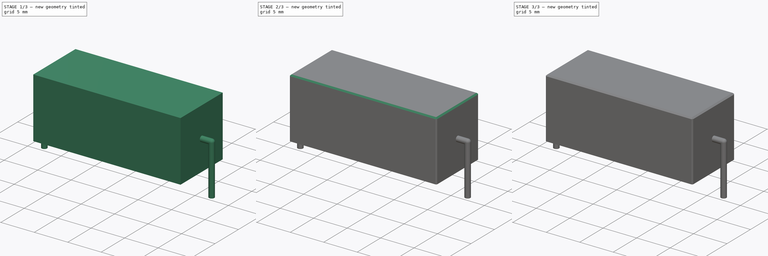
[diagram: build sequence overview — one tinted view per stage of 3, left to right]
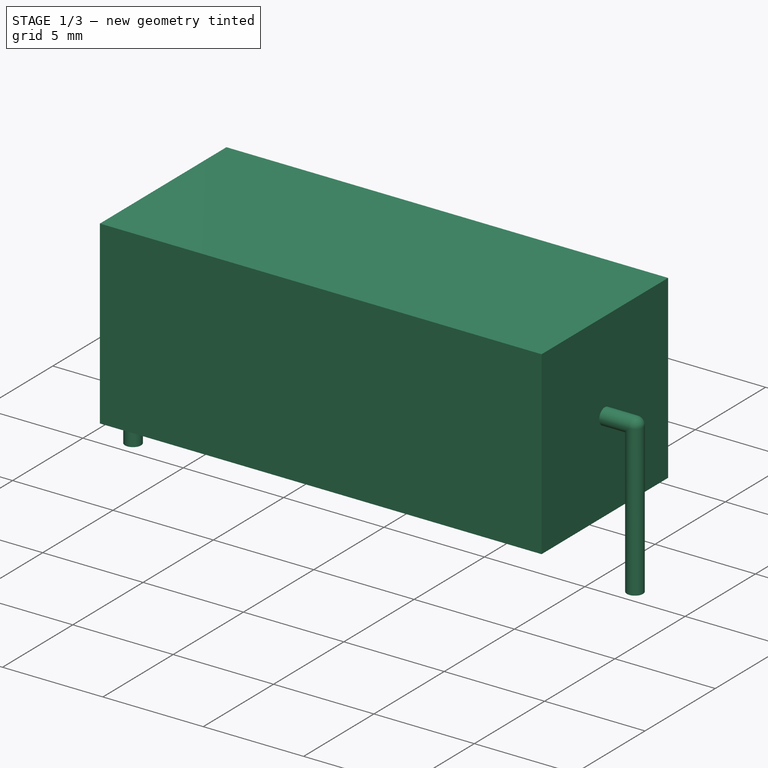
[diagram: stage 1 of 3 — iso view after this stage's code; geometry added in this stage tinted green]
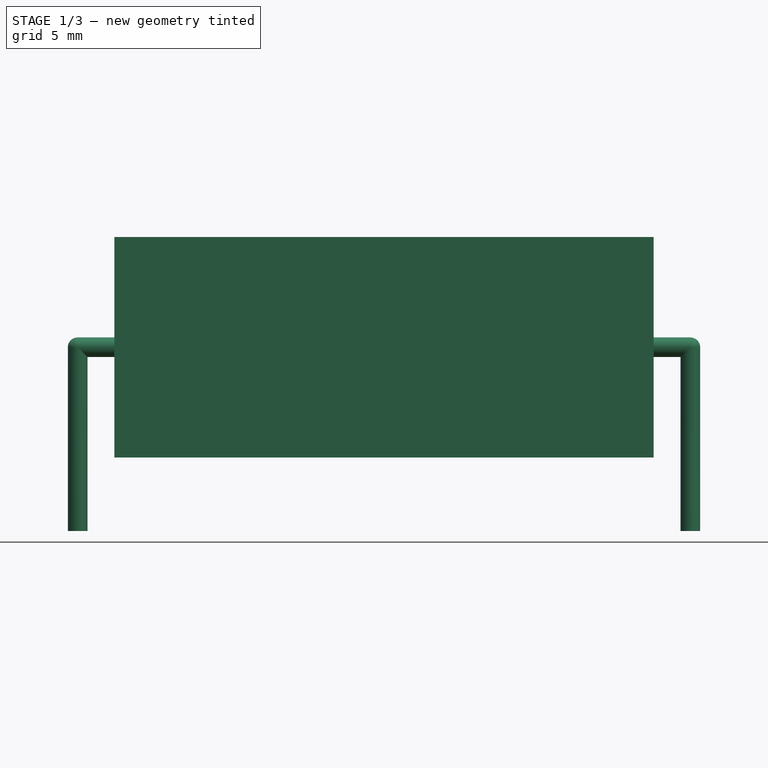
[diagram: stage 1 of 3 — front view after this stage's code; geometry added in this stage tinted green]
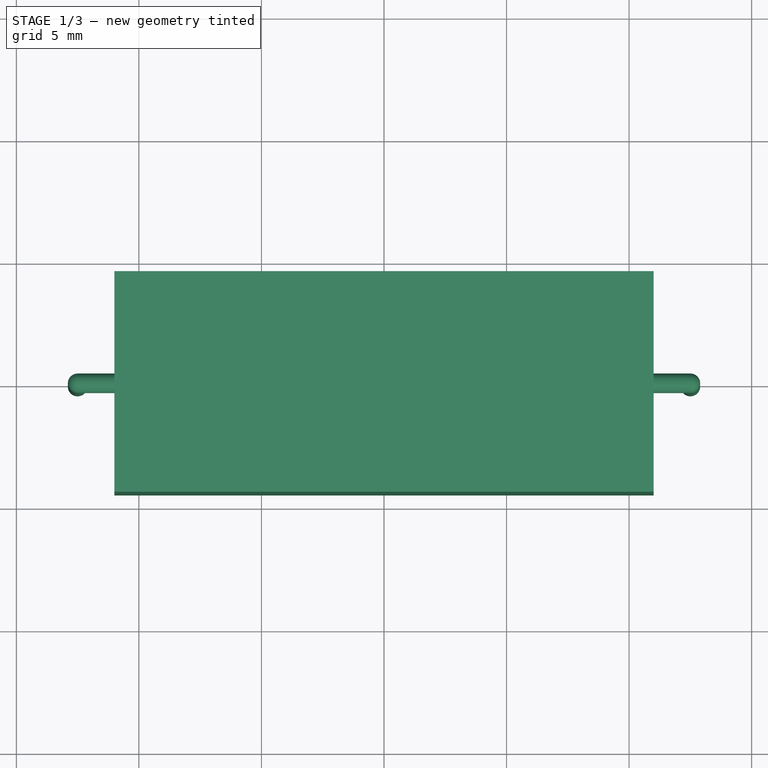
[diagram: stage 1 of 3 — top view after this stage's code; geometry added in this stage tinted green]
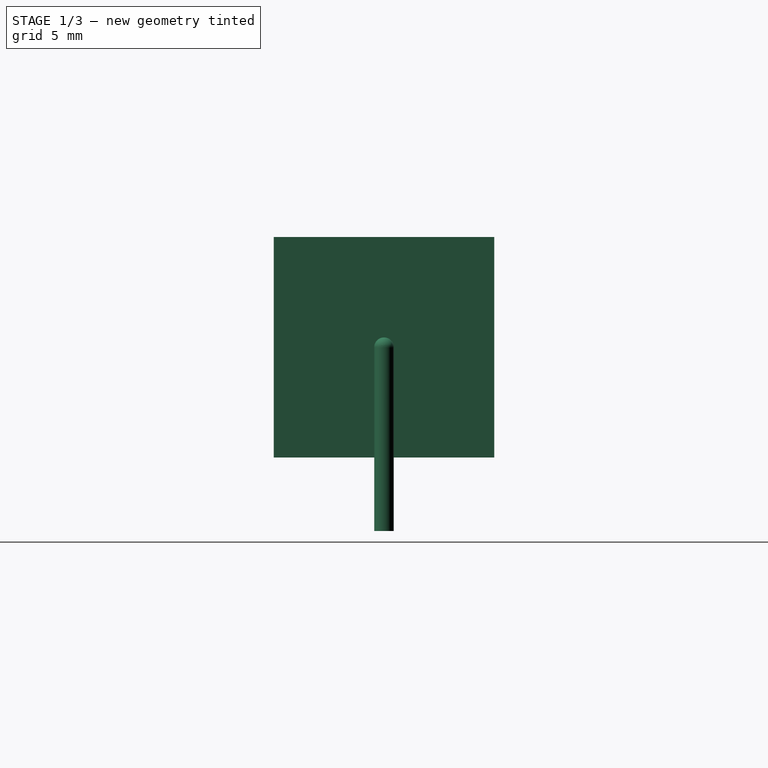
[diagram: stage 1 of 3 — right view after this stage's code; geometry added in this stage tinted green]
FCSTD DOCUMENT  (FreeCAD 0.18R4 (GitTag))
Label: resistor1THT
License: All rights reserved
LicenseURL: http://en.wikipedia.org/wiki/All_rights_reserved
objects: Sketcher::SketchObject×4, PartDesign::Chamfer×2, PartDesign::Body×2, Spreadsheet::Sheet×1, PartDesign::Pad×1, PartDesign::Fillet×1, PartDesign::Pocket×1, PartDesign::AdditivePipe×1, App::Part×1
note: 15 computed .brp shape members not serialized (recipe doc carries the construction recipe); baked Part::Feature solids carry a one-line shape summary decoded from their .brp

FEATURE [Sketcher::SketchObject] Sketch
  MapMode = 5
  Support = -> [XY_Plane001]
  expr: Constraints[9] = Spreadsheet.B3
  expr: Constraints[8] = Spreadsheet.B1
  sketch-geometry (4):
    g0: LineSegment StartX=-11 StartY=4.5 StartZ=0 EndX=11 EndY=4.5 EndZ=0
    g1: LineSegment StartX=11 StartY=4.5 StartZ=0 EndX=11 EndY=-4.5 EndZ=0
    g2: LineSegment StartX=11 StartY=-4.5 StartZ=0 EndX=-11 EndY=-4.5 EndZ=0
    g3: LineSegment StartX=-11 StartY=-4.5 StartZ=0 EndX=-11 EndY=4.5 EndZ=0
  constraints (10):
    c: Coincident(g0,g1)
    c: Coincident(g1,g2)
    c: Coincident(g2,g3)
    c: Coincident(g3,g0)
    c: Horizontal(g2)
    c: Vertical(g3)
    c: Symmetric(g0,g0,g-2)
    c: Symmetric(g0,g1,g-1)
    c: DistanceX(g0,g0) = 22
    c: DistanceY(g1,g1) = 9
FEATURE [Spreadsheet::Sheet] Spreadsheet
  cells = A1=w; B1=22; C1=mm; E1==B1 - 1; A2=h; B2=9; C2=mm; E2==B2 / 2; A3=d; B3=9; C3=mm; E3==B3 - 1; A4=d1; B4=0.8; C4=mm; A5=r; B5=25; C5=mm; E5==B5 / 2
FEATURE [PartDesign::Pad] Pad
  Length = 9
  Length2 = 100
  Profile = -> Sketch
  Type = 0
  expr: Length = Spreadsheet.B2
FEATURE [PartDesign::Body] Body
  Group = -> [Sketch,Pad,Chamfer,Fillet,Sketch001,Pocket,Chamfer001]
  Origin = -> Origin001
  Tip = -> Chamfer001
FEATURE [Sketcher::SketchObject] Sketch002
  MapMode = 5
  Placement = pos=(0,0,0) rot=(1,0,0;1.5708rad)
  Support = -> [XZ_Plane002]
  expr: Constraints[8] = Spreadsheet.B5
  expr: Constraints[7] = Spreadsheet.E2
  sketch-geometry (3):
    g0: LineSegment StartX=-12.5 StartY=-3 StartZ=0 EndX=-12.5 EndY=4.5 EndZ=0
    g1: LineSegment StartX=-12.5 StartY=4.5 StartZ=0 EndX=12.5 EndY=4.5 EndZ=0
    g2: LineSegment StartX=12.5 StartY=4.5 StartZ=0 EndX=12.5 EndY=-3 EndZ=0
  constraints (9):
    c: Vertical(g0)
    c: Coincident(g0,g1)
    c: Coincident(g1,g2)
    c: Vertical(g2)
    c: Equal(g2,g0)
    c: Symmetric(g0,g1,g-2)
    c: DistanceY(g0,g-1) = 3
    c: DistanceY(g-1,g0) = 4.5
    c: DistanceX(g0,g2) = 25
FEATURE [Sketcher::SketchObject] Sketch003
  MapMode = 5
  Support = -> [XY_Plane002]
  expr: Constraints[2] = Spreadsheet.E5
  expr: Constraints[1] = Spreadsheet.B4
  sketch-geometry (1):
    g0: Circle CenterX=-12.5 CenterY=0 CenterZ=0 NormalX=0 NormalY=0 NormalZ=1 AngleXU=0 Radius=0.4
  constraints (3):
    c: PointOnObject(g0,g-1)
    c: Diameter(g0) = 0.8
    c: DistanceX(g0,g-1) = 12.5
FEATURE [PartDesign::AdditivePipe] AdditivePipe
  AuxilleryCurvelinear = true
  AuxillerySpineTangent = false
  Binormal = (0,0,0)
  Mode = 0
  Profile = -> Sketch003
  Spine = -> Sketch002 [Edge1,Edge2,Edge3]
  SpineTangent = false
  Transformation = 0
  Transition = 2
FEATURE [PartDesign::Body] Body001
  Group = -> [Sketch002,Sketch003,AdditivePipe]
  Origin = -> Origin002
  Tip = -> AdditivePipe
FEATURE [App::Part] Part
  Group = -> [Body,Spreadsheet,Body001]
  Origin = -> Origin
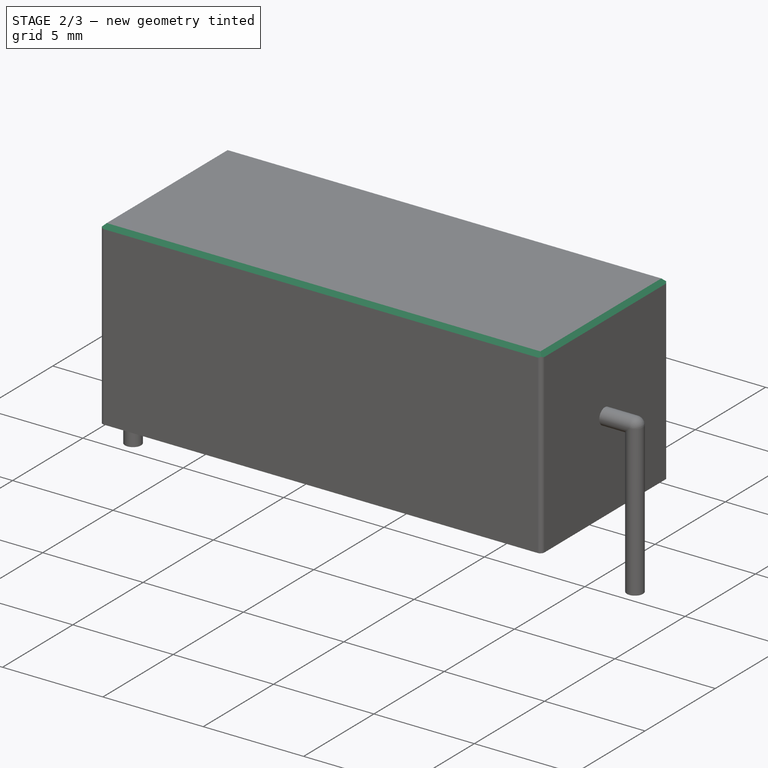
[diagram: stage 2 of 3 — iso view after this stage's code; geometry added in this stage tinted green]
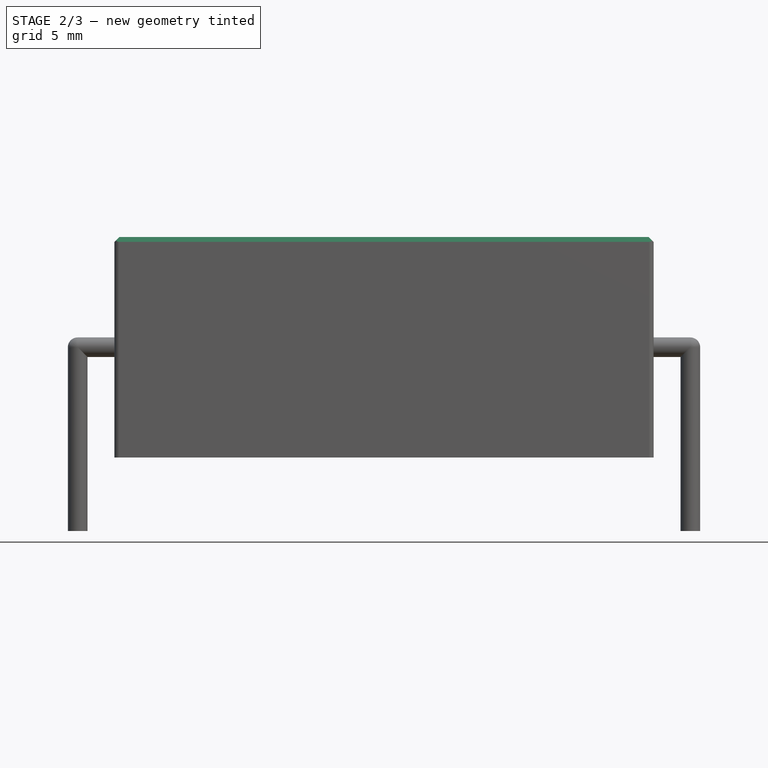
[diagram: stage 2 of 3 — front view after this stage's code; geometry added in this stage tinted green]
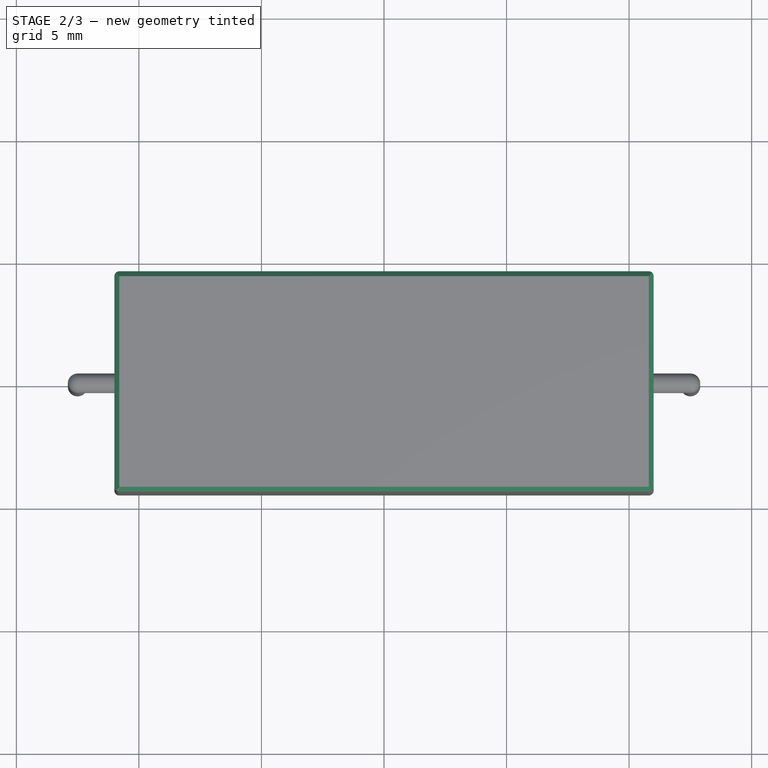
[diagram: stage 2 of 3 — top view after this stage's code; geometry added in this stage tinted green]
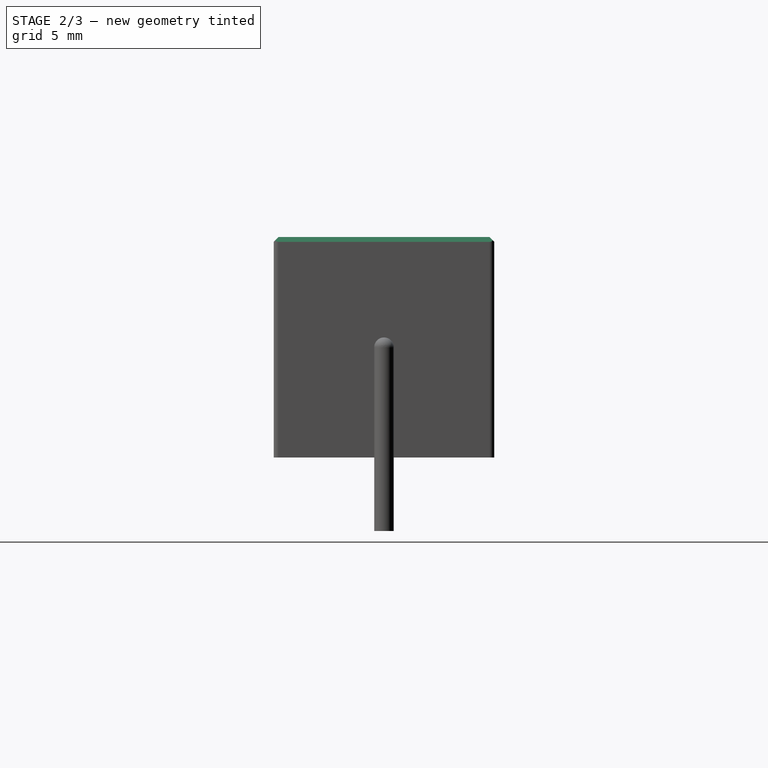
[diagram: stage 2 of 3 — right view after this stage's code; geometry added in this stage tinted green]
FEATURE [PartDesign::Chamfer] Chamfer
  Base = -> Pad [Face6]
  BaseFeature = -> Pad
  Size = 0.2
FEATURE [PartDesign::Fillet] Fillet
  Base = -> Chamfer [Edge5,Edge1,Edge14,Edge4]
  BaseFeature = -> Chamfer
  Radius = 0.2
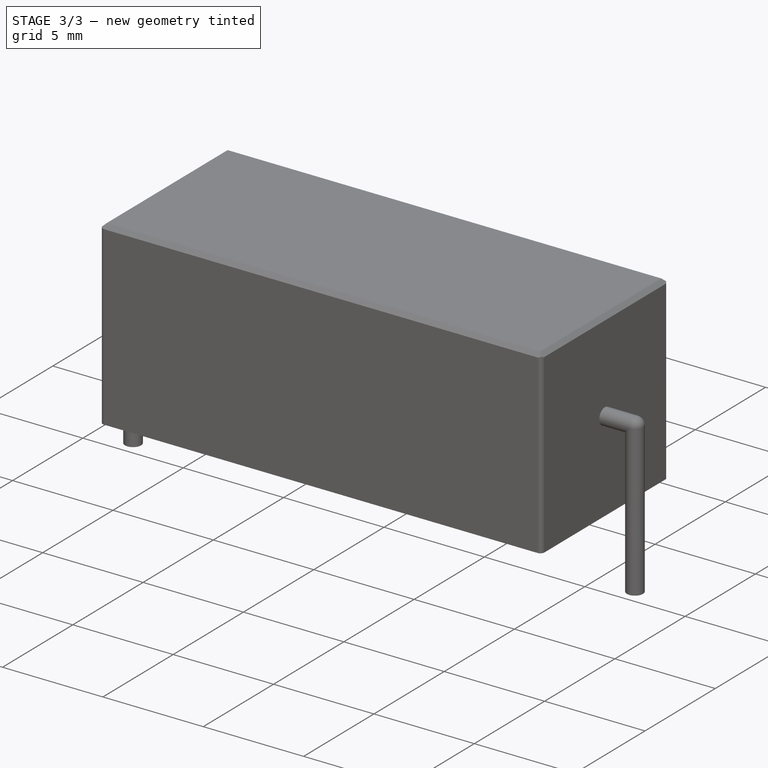
[diagram: stage 3 of 3 — iso view after this stage's code; geometry added in this stage tinted green]
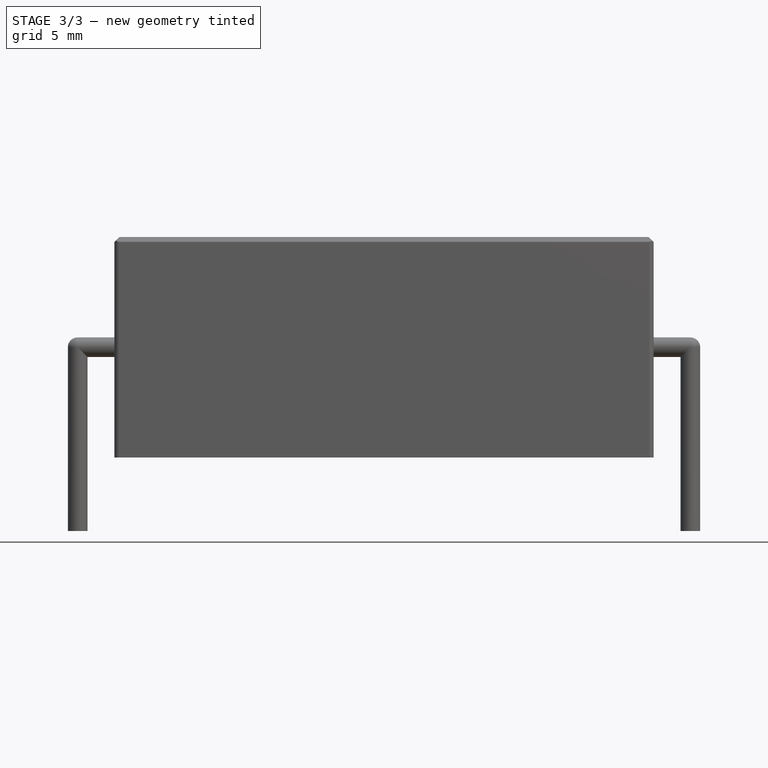
[diagram: stage 3 of 3 — front view after this stage's code; geometry added in this stage tinted green]
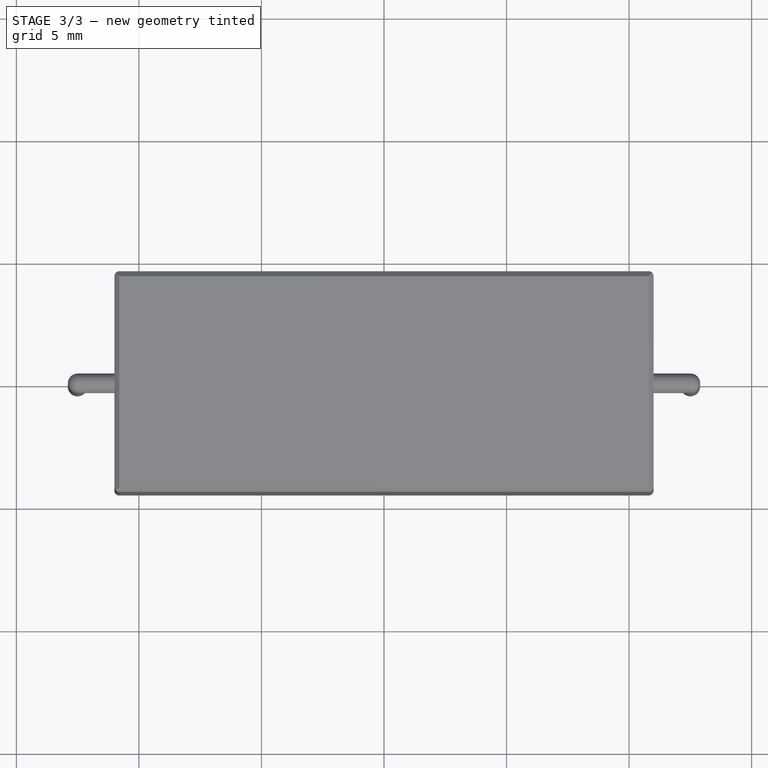
[diagram: stage 3 of 3 — top view after this stage's code; geometry added in this stage tinted green]
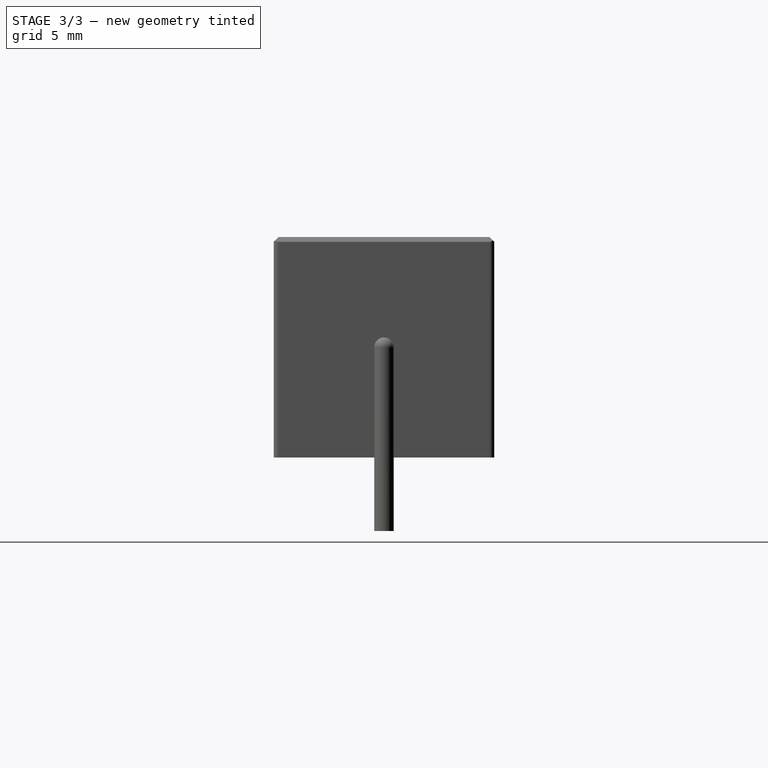
[diagram: stage 3 of 3 — right view after this stage's code; geometry added in this stage tinted green]
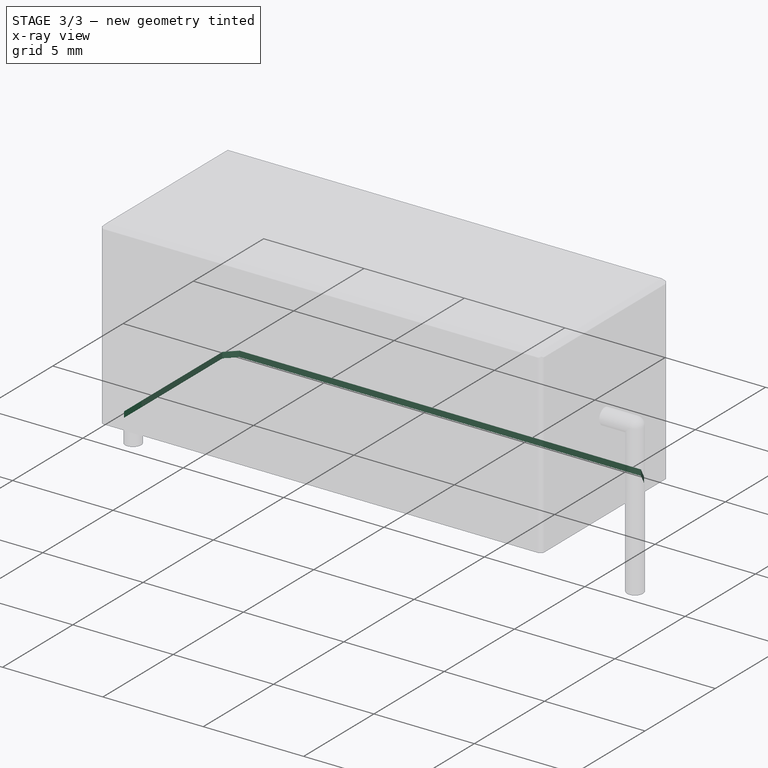
[diagram: stage 3 of 3 — x-ray composite at the iso view; earlier geometry ghosted, this stage's added geometry solid]
FEATURE [Sketcher::SketchObject] Sketch001
  MapMode = 5
  Placement = pos=(0,0,0) rot=(1,0,0;3.14159rad)
  Support = -> [Fillet]
  expr: Constraints[9] = Spreadsheet.E3
  expr: Constraints[8] = Spreadsheet.E1
  sketch-geometry (4):
    g0: LineSegment StartX=-10.5 StartY=4 StartZ=0 EndX=10.5 EndY=4 EndZ=0
    g1: LineSegment StartX=10.5 StartY=4 StartZ=0 EndX=10.5 EndY=-4 EndZ=0
    g2: LineSegment StartX=10.5 StartY=-4 StartZ=0 EndX=-10.5 EndY=-4 EndZ=0
    g3: LineSegment StartX=-10.5 StartY=-4 StartZ=0 EndX=-10.5 EndY=4 EndZ=0
  constraints (10):
    c: Coincident(g0,g1)
    c: Coincident(g1,g2)
    c: Coincident(g2,g3)
    c: Coincident(g3,g0)
    c: Horizontal(g2)
    c: Vertical(g3)
    c: Symmetric(g0,g0,g-2)
    c: Symmetric(g0,g1,g-1)
    c: DistanceX(g0,g0) = 21
    c: DistanceY(g1,g1) = 8
FEATURE [PartDesign::Pocket] Pocket
  BaseFeature = -> Fillet
  Length = 0.3
  Length2 = 100
  Profile = -> Sketch001
  Type = 0
FEATURE [PartDesign::Chamfer] Chamfer001
  Base = -> Pocket [Edge42,Edge41,Edge44,Edge46]
  BaseFeature = -> Pocket
  Size = 0.5
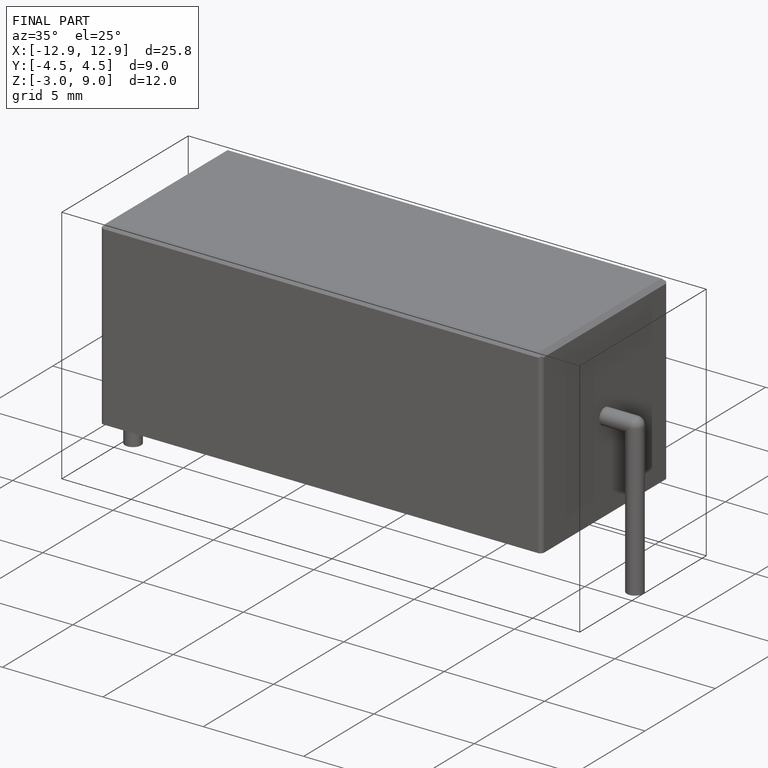
[diagram: finished part — iso view with bounding-box wireframe]
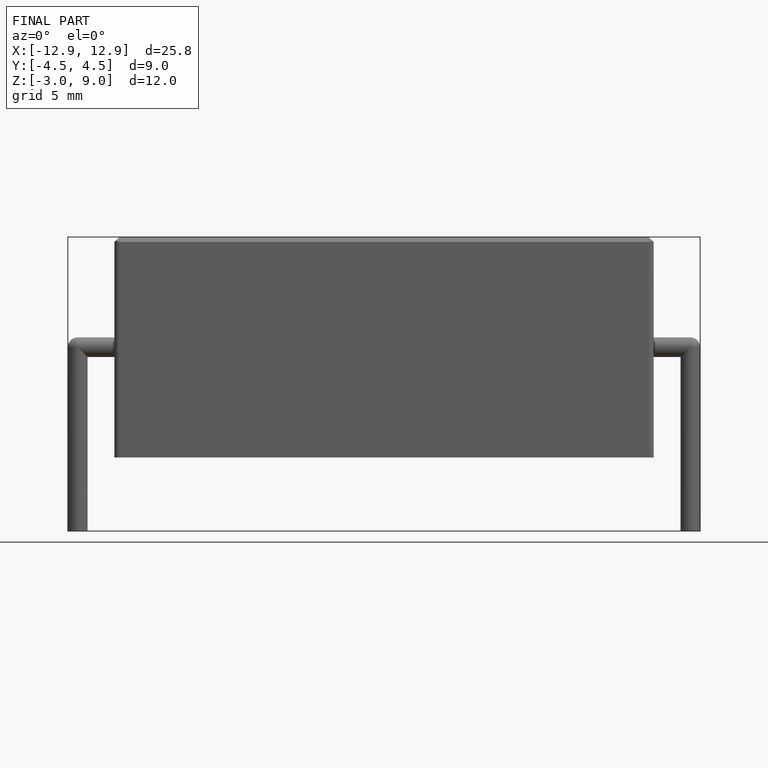
[diagram: finished part — front view with bounding-box wireframe]
